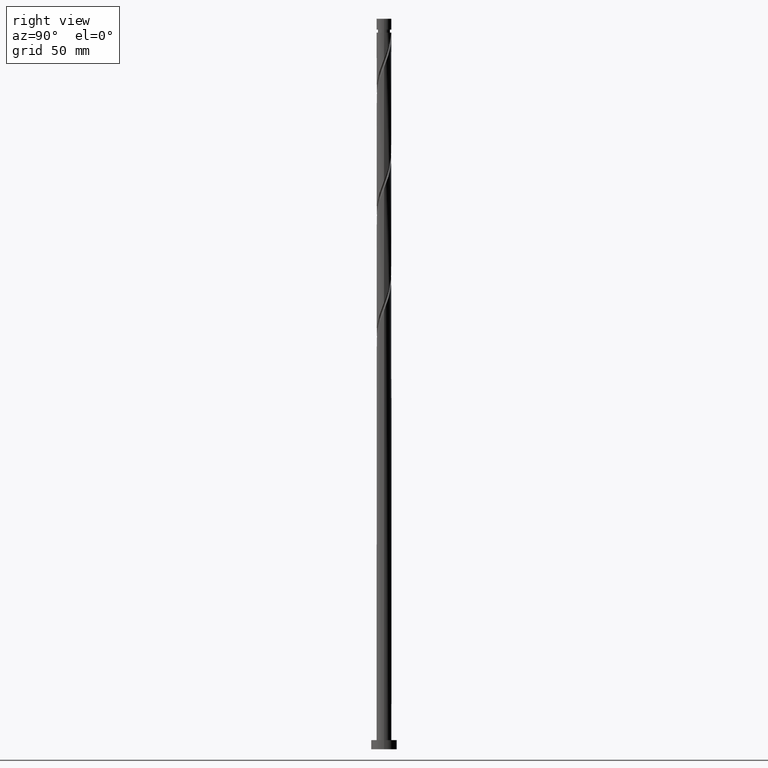
[diagram: clean part render]
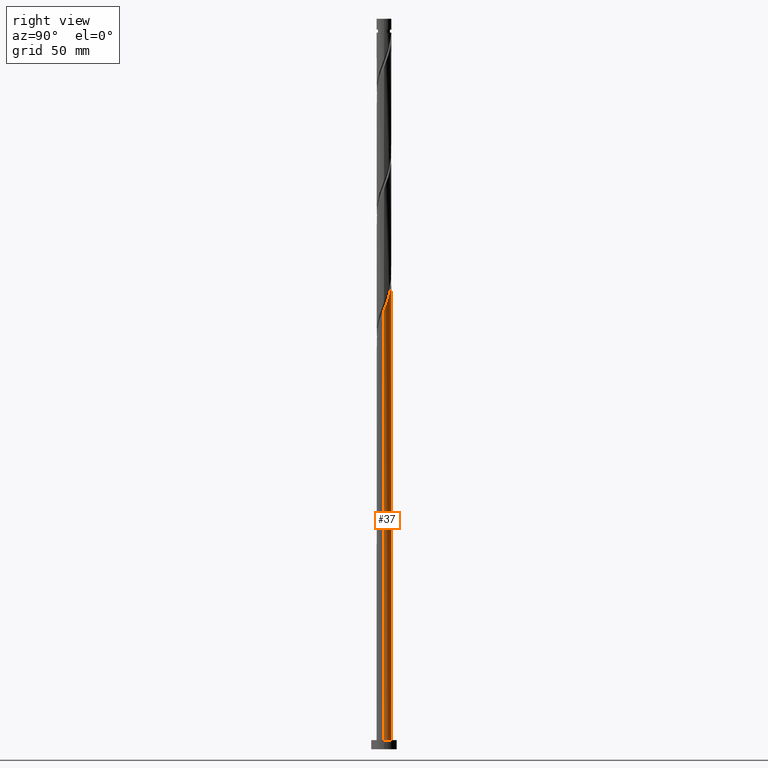
[diagram: same view with one face highlighted and labeled with its STEP entity id]
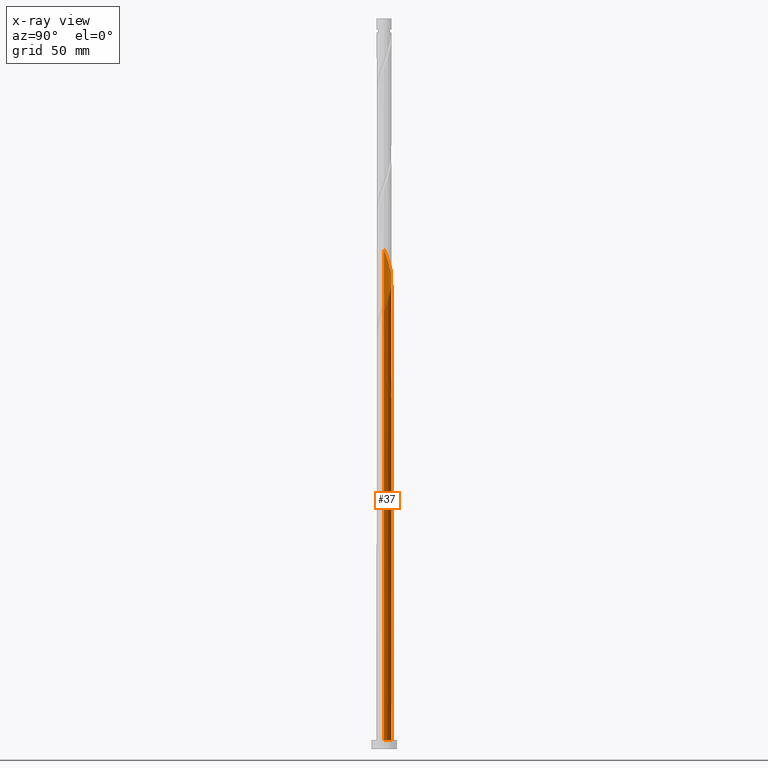
[diagram: x-ray of the same camera — body ghosted, the highlighted face saturated]
A machine part, right view. The second image highlights one B-rep face of the part: STEP entity #37.
The next image is the same camera in x-ray: the body ghosted, the highlighted face saturated — about 0% of this face is hidden behind the body in this view.
In plain terms, the highlighted cylindrical surface (edge-blend (fillet) strip) has radius 4.1 mm, axis along (-0, -0, -1).
Its self-contained STEP definition (entity closure, byte-faithful):
#21 = DIRECTION ( 'NONE',  ( -0.000000000000000000, -0.000000000000000000, -1.000000000000000000 ) ) ;
#23 = EDGE_LOOP ( 'NONE', ( #716, #1069, #973, #1214, #145, #49, #920, #1603 ) ) ;
#30 = VERTEX_POINT ( 'NONE', #1676 ) ;
#37 = ADVANCED_FACE ( 'NONE', ( #419 ), #1371, .T. ) ;
#45 = CARTESIAN_POINT ( 'NONE',  ( 3.071745223192165142, 2.715581205524180142, 247.9558985910525735 ) ) ;
#48 = VECTOR ( 'NONE', #1546, 1000.000000000000000 ) ;
#49 = ORIENTED_EDGE ( 'NONE', *, *, #845, .T. ) ;
#53 = CARTESIAN_POINT ( 'NONE',  ( 0.03732862272553962718, 4.099830066469275280, 256.8447874799414876 ) ) ;
#72 = CARTESIAN_POINT ( 'NONE',  ( -4.099999999999999645, 5.785036767797397422E-15, 211.1924529456851189 ) ) ;
#79 = CARTESIAN_POINT ( 'NONE',  ( -2.093712142991256631, 3.551347329654311658, 200.1781208132748304 ) ) ;
#82 = CARTESIAN_POINT ( 'NONE',  ( -3.531892677398866809, 2.082242568803237770, 267.9558985910525166 ) ) ;
#102 = CARTESIAN_POINT ( 'NONE',  ( -3.910705279217191688, 1.231415534700929904, 207.9558985910525166 ) ) ;
#111 = CARTESIAN_POINT ( 'NONE',  ( 0.3935808811299431609, 4.103753462814356823, 193.5114541466081448 ) ) ;
#122 = CARTESIAN_POINT ( 'NONE',  ( -0.03732862272553665040, 4.099830066469269063, 194.6225652577191738 ) ) ;
#129 = VERTEX_POINT ( 'NONE', #1362 ) ;
#145 = ORIENTED_EDGE ( 'NONE', *, *, #252, .F. ) ;
#175 = CARTESIAN_POINT ( 'NONE',  ( -3.887634921619595119, 1.302418794475822317, 203.5114541466081448 ) ) ;
#196 = CARTESIAN_POINT ( 'NONE',  ( -4.099999999999999645, 0.000000000000000000, 400.0000000000000000 ) ) ;
#204 = CARTESIAN_POINT ( 'NONE',  ( -1.633449724685978488, 3.760564053027596554, 261.2892319243858310 ) ) ;
#225 = EDGE_CURVE ( 'NONE', #1762, #129, #1108, .T. ) ;
#252 = EDGE_CURVE ( 'NONE', #1982, #1655, #868, .T. ) ;
#268 = CARTESIAN_POINT ( 'NONE',  ( -0.4682381265810167115, 4.095906670124179527, 195.7336763688303449 ) ) ;
#290 = CARTESIAN_POINT ( 'NONE',  ( -4.081272671962249632, 0.3914248038820667963, 210.1781208132746883 ) ) ;
#298 = VECTOR ( 'NONE', #836, 1000.000000000000000 ) ;
#304 = CARTESIAN_POINT ( 'NONE',  ( -4.099999999999999645, 0.000000000000000000, 400.0000000000000000 ) ) ;
#311 = CIRCLE ( 'NONE', #1650, 4.099999999999999645 ) ;
#320 = EDGE_CURVE ( 'NONE', #1655, #1397, #353, .T. ) ;
#334 = CARTESIAN_POINT ( 'NONE',  ( 4.099999999999999645, 5.021051876504146399E-16, 400.0000000000000000 ) ) ;
#341 = EDGE_CURVE ( 'NONE', #1762, #30, #1497, .T. ) ;
#344 = CARTESIAN_POINT ( 'NONE',  ( -4.073468864823458269, 0.4656730691310436154, 205.7336763688303165 ) ) ;
#353 = LINE ( 'NONE', #196, #298 ) ;
#360 = CARTESIAN_POINT ( 'NONE',  ( -3.887634921619595119, 1.302418794475822317, 270.1781208132748020 ) ) ;
#375 = CARTESIAN_POINT ( 'NONE',  ( 0.4682381265810190429, 4.095906670124184856, 255.7336763688303165 ) ) ;
#419 = FACE_OUTER_BOUND ( 'NONE', #23, .T. ) ;
#429 = CARTESIAN_POINT ( 'NONE',  ( 0.000000000000000000, 0.000000000000000000, 400.0000000000000000 ) ) ;
#493 = CARTESIAN_POINT ( 'NONE',  ( -4.024524653008618280, 0.8938118990468569836, 204.6225652577191738 ) ) ;
#506 = VERTEX_POINT ( 'NONE', #518 ) ;
#512 = CARTESIAN_POINT ( 'NONE',  ( -3.313040164567164325, 2.453459447701689111, 266.8447874799414308 ) ) ;
#518 = CARTESIAN_POINT ( 'NONE',  ( 0.8158896984274321973, 4.017999999999998906, 192.4003430354969737 ) ) ;
#521 = CARTESIAN_POINT ( 'NONE',  ( 1.309592881304574297, 3.909049101608763621, 253.5114541466080880 ) ) ;
#539 = CARTESIAN_POINT ( 'NONE',  ( -2.440019140137475784, 3.294890983896547887, 201.2892319243858310 ) ) ;
#580 =( BOUNDED_CURVE ( )  B_SPLINE_CURVE ( 2, ( #912, #1671, #290, #1503, #102, #1813, #1513, #1190, #1336, #1991, #539, #79, #717, #696, #1954, #268, #122, #111, #1803 ),
 .UNSPECIFIED., .F., .T. ) 
 B_SPLINE_CURVE_WITH_KNOTS ( ( 3, 2, 2, 2, 2, 2, 2, 2, 2, 3 ),
 ( 0.9295286012773115170, 0.9333333333333333481, 0.9416666666666666519, 0.9499999999999999556, 0.9583333333333333703, 0.9666666666666666741, 0.9749999999999999778, 0.9833333333333332815, 0.9916666666666666963, 1.000000000000000000 ),
 .UNSPECIFIED. ) 
 CURVE ( )  GEOMETRIC_REPRESENTATION_ITEM ( )  RATIONAL_B_SPLINE_CURVE ( ( 0.9066196499552329202, 0.9068171577856456445, 0.9090909090909445878, 0.9041108139711927505, 0.9090909090909445878, 0.9041108139711927505, 0.9090909090909445878, 0.9041108139711927505, 0.9090909090909445878, 0.9041108139711927505, 0.9090909090909445878, 0.9041108139711927505, 0.9090909090909445878, 0.9041108139711927505, 0.9090909090909445878, 0.9041108139711927505, 0.9090909090909445878, 0.9041108139711927505, 0.9090909090909445878 ) ) 
 REPRESENTATION_ITEM ( '' )  );
#616 = EDGE_CURVE ( 'NONE', #129, #1397, #957, .T. ) ;
#636 = CARTESIAN_POINT ( 'NONE',  ( -3.313040164567164325, 2.453459447701689111, 200.1781208132747736 ) ) ;
#645 = VECTOR ( 'NONE', #21, 1000.000000000000000 ) ;
#661 = CARTESIAN_POINT ( 'NONE',  ( 2.093712142991263292, 3.551347329654313878, 251.2892319243859163 ) ) ;
#677 = CARTESIAN_POINT ( 'NONE',  ( 4.040132267286214329, 0.8203838469793623966, 242.4003430354969737 ) ) ;
#696 = CARTESIAN_POINT ( 'NONE',  ( -1.309592881304570078, 3.909049101608759180, 197.9558985910525450 ) ) ;
#699 = CARTESIAN_POINT ( 'NONE',  ( -4.024524653008618280, 0.8938118990468569836, 271.2892319243858879 ) ) ;
#716 = ORIENTED_EDGE ( 'NONE', *, *, #341, .F. ) ;
#717 = CARTESIAN_POINT ( 'NONE',  ( -1.701652512147913354, 3.730198215631534087, 199.0670097021636593 ) ) ;
#747 = DIRECTION ( 'NONE',  ( -1.000000000000000000, 0.000000000000000000, 0.000000000000000000 ) ) ;
#784 = CARTESIAN_POINT ( 'NONE',  ( -2.379620159814338276, 3.338773411749474285, 196.8447874799414024 ) ) ;
#794 = EDGE_CURVE ( 'NONE', #1891, #506, #580, .T. ) ;
#836 = DIRECTION ( 'NONE',  ( -0.000000000000000000, -0.000000000000000000, -1.000000000000000000 ) ) ;
#845 = EDGE_CURVE ( 'NONE', #1982, #506, #311, .T. ) ;
#868 =( BOUNDED_CURVE ( )  B_SPLINE_CURVE ( 2, ( #945, #1573, #1750, #1744, #784, #1551, #1422, #636, #1264, #1100, #175, #493, #344, #1119, #1592 ),
 .UNSPECIFIED., .F., .T. ) 
 B_SPLINE_CURVE_WITH_KNOTS ( ( 3, 2, 2, 2, 2, 2, 2, 3 ),
 ( 0.000000000000000000, 0.008333333333333303727, 0.01666666666666671848, 0.02500000000000002220, 0.03333333333333332593, 0.04166666666666662966, 0.05000000000000004441, 0.05452860127731149614 ),
 .UNSPECIFIED. ) 
 CURVE ( )  GEOMETRIC_REPRESENTATION_ITEM ( )  RATIONAL_B_SPLINE_CURVE ( ( 0.9090909090909504719, 0.9041108139711987457, 0.9090909090909504719, 0.9041108139711987457, 0.9090909090909504719, 0.9041108139711987457, 0.9090909090909504719, 0.9041108139711987457, 0.9090909090909504719, 0.9041108139711987457, 0.9090909090909504719, 0.9041108139711987457, 0.9090909090909504719, 0.9063845652764976890, 0.9066196499552388044 ) ) 
 REPRESENTATION_ITEM ( '' )  );
#912 = CARTESIAN_POINT ( 'NONE',  ( -4.099999999999999645, 5.785036767797397422E-15, 211.1924529456851189 ) ) ;
#920 = ORIENTED_EDGE ( 'NONE', *, *, #794, .F. ) ;
#945 = CARTESIAN_POINT ( 'NONE',  ( -0.8158896984274307540, 4.018000000000005123, 192.4003430354969737 ) ) ;
#957 = CIRCLE ( 'NONE', #1745, 4.099999999999999645 ) ;
#969 = CARTESIAN_POINT ( 'NONE',  ( 2.786326137283700266, 3.038434638138789001, 249.0670097021635740 ) ) ;
#973 = ORIENTED_EDGE ( 'NONE', *, *, #616, .T. ) ;
#979 = CARTESIAN_POINT ( 'NONE',  ( 3.569221300124404639, 2.017587497666035734, 245.7336763688302881 ) ) ;
#987 = DIRECTION ( 'NONE',  ( 1.000000000000000000, 0.000000000000000000, 0.000000000000000000 ) ) ;
#990 = CARTESIAN_POINT ( 'NONE',  ( 4.081272671962255849, 0.3914248038820629660, 241.2892319243858879 ) ) ;
#994 = CARTESIAN_POINT ( 'NONE',  ( 0.000000000000000000, 0.000000000000000000, 5.000000000000000000 ) ) ;
#1007 = CARTESIAN_POINT ( 'NONE',  ( 0.8889155039427987237, 4.002477885866474239, 254.6225652577192022 ) ) ;
#1054 = DIRECTION ( 'NONE',  ( -0.000000000000000000, -0.000000000000000000, -1.000000000000000000 ) ) ;
#1069 = ORIENTED_EDGE ( 'NONE', *, *, #225, .T. ) ;
#1100 = CARTESIAN_POINT ( 'NONE',  ( -3.750745190230568848, 1.711025689904787317, 202.4003430354969737 ) ) ;
#1108 = LINE ( 'NONE', #334, #645 ) ;
#1119 = CARTESIAN_POINT ( 'NONE',  ( -4.100000000000004086, 0.2335923235303730972, 206.3359751492575924 ) ) ;
#1129 = CARTESIAN_POINT ( 'NONE',  ( -3.750745190230568848, 1.711025689904787317, 269.0670097021635456 ) ) ;
#1139 = CARTESIAN_POINT ( 'NONE',  ( 4.100000000000004974, 0.1961603970756759796, 240.7834483175395519 ) ) ;
#1148 = CARTESIAN_POINT ( 'NONE',  ( -1.238198515724920235, 3.932246537185646318, 260.1781208132747452 ) ) ;
#1149 = CARTESIAN_POINT ( 'NONE',  ( 4.100000000000004974, 2.481436959830391851E-15, 240.2748997919754856 ) ) ;
#1162 = AXIS2_PLACEMENT_3D ( 'NONE', #429, #1054, #747 ) ;
#1190 = CARTESIAN_POINT ( 'NONE',  ( -3.357164309100620248, 2.392727772909573503, 204.6225652577192022 ) ) ;
#1214 = ORIENTED_EDGE ( 'NONE', *, *, #320, .F. ) ;
#1264 = CARTESIAN_POINT ( 'NONE',  ( -3.531892677398866809, 2.082242568803237770, 201.2892319243858879 ) ) ;
#1271 = CARTESIAN_POINT ( 'NONE',  ( -4.100000000000004974, -3.946381671055562687E-15, 206.9415664586421713 ) ) ;
#1276 = DIRECTION ( 'NONE',  ( 0.000000000000000000, 0.000000000000000000, 1.000000000000000000 ) ) ;
#1290 = CARTESIAN_POINT ( 'NONE',  ( -2.730539385981640699, 3.088665254629401336, 264.6225652577192022 ) ) ;
#1297 = CARTESIAN_POINT ( 'NONE',  ( -4.100000000000004974, 0.2335923235303721257, 273.0026418159242780 ) ) ;
#1305 = CARTESIAN_POINT ( 'NONE',  ( 3.781278291148183257, 1.642447222422494635, 244.6225652577192022 ) ) ;
#1315 = CARTESIAN_POINT ( 'NONE',  ( -2.028700933647036297, 3.588881568869546346, 262.4003430354969737 ) ) ;
#1326 = CARTESIAN_POINT ( 'NONE',  ( 4.100000000000004974, 2.481436959830391851E-15, 240.2748997919754856 ) ) ;
#1336 = CARTESIAN_POINT ( 'NONE',  ( -3.071745223192157592, 2.715581205524179698, 203.5114541466080880 ) ) ;
#1362 = CARTESIAN_POINT ( 'NONE',  ( 4.099999999999999645, 5.021051876504146399E-16, 5.000000000000000000 ) ) ;
#1371 = CYLINDRICAL_SURFACE ( 'NONE', #1162, 4.099999999999999645 ) ;
#1380 = CARTESIAN_POINT ( 'NONE',  ( -4.099999999999999645, 0.000000000000000000, 5.000000000000000000 ) ) ;
#1397 = VERTEX_POINT ( 'NONE', #1380 ) ;
#1398 = CARTESIAN_POINT ( 'NONE',  ( 0.000000000000000000, 0.000000000000000000, 192.4003430354970305 ) ) ;
#1401 = EDGE_CURVE ( 'NONE', #30, #1891, #1847, .T. ) ;
#1422 = CARTESIAN_POINT ( 'NONE',  ( -3.021789775274403400, 2.771062351165545223, 199.0670097021636877 ) ) ;
#1451 = CARTESIAN_POINT ( 'NONE',  ( -4.073468864823458269, 0.4656730691310436154, 272.4003430354969737 ) ) ;
#1481 = CARTESIAN_POINT ( 'NONE',  ( -3.021789775274403400, 2.771062351165545223, 265.7336763688303449 ) ) ;
#1497 =( BOUNDED_CURVE ( )  B_SPLINE_CURVE ( 2, ( #1326, #1139, #990, #677, #1778, #1305, #979, #1640, #45, #969, #1768, #661, #1608, #521, #1007, #375, #53, #1909, #1759, #1148, #204, #1315, #1787, #1290, #1481, #512, #82, #1129, #360, #699, #1451, #1297, #1619 ),
 .UNSPECIFIED., .F., .T. ) 
 B_SPLINE_CURVE_WITH_KNOTS ( ( 3, 2, 2, 2, 2, 2, 2, 2, 2, 2, 2, 2, 2, 2, 2, 2, 3 ),
 ( 0.1795286012773115725, 0.1833333333333333481, 0.1916666666666666519, 0.1999999999999999556, 0.2083333333333333703, 0.2166666666666666741, 0.2249999999999999778, 0.2333333333333332815, 0.2416666666666666963, 0.2500000000000000000, 0.2583333333333333037, 0.2666666666666667185, 0.2750000000000000222, 0.2833333333333333259, 0.2916666666666666297, 0.3000000000000000444, 0.3045286012773115170 ),
 .UNSPECIFIED. ) 
 CURVE ( )  GEOMETRIC_REPRESENTATION_ITEM ( )  RATIONAL_B_SPLINE_CURVE ( ( 0.9066196499552388044, 0.9068171577856516397, 0.9090909090909504719, 0.9041108139711987457, 0.9090909090909504719, 0.9041108139711987457, 0.9090909090909504719, 0.9041108139711987457, 0.9090909090909504719, 0.9041108139711987457, 0.9090909090909504719, 0.9041108139711987457, 0.9090909090909504719, 0.9041108139711987457, 0.9090909090909504719, 0.9041108139711987457, 0.9090909090909504719, 0.9041108139711987457, 0.9090909090909504719, 0.9041108139711987457, 0.9090909090909504719, 0.9041108139711987457, 0.9090909090909504719, 0.9041108139711987457, 0.9090909090909504719, 0.9041108139711987457, 0.9090909090909504719, 0.9041108139711987457, 0.9090909090909504719, 0.9041108139711987457, 0.9090909090909504719, 0.9063845652764975780, 0.9066196499552388044 ) ) 
 REPRESENTATION_ITEM ( '' )  );
#1503 = CARTESIAN_POINT ( 'NONE',  ( -4.040132267286208112, 0.8203838469793625077, 209.0670097021636877 ) ) ;
#1513 = CARTESIAN_POINT ( 'NONE',  ( -3.569221300124397978, 2.017587497666034402, 205.7336763688303165 ) ) ;
#1546 = DIRECTION ( 'NONE',  ( -0.000000000000000000, -0.000000000000000000, -1.000000000000000000 ) ) ;
#1551 = CARTESIAN_POINT ( 'NONE',  ( -2.730539385981640699, 3.088665254629401336, 197.9558985910525166 ) ) ;
#1573 = CARTESIAN_POINT ( 'NONE',  ( -1.238198515724920235, 3.932246537185646318, 193.5114541466080880 ) ) ;
#1592 = CARTESIAN_POINT ( 'NONE',  ( -4.100000000000004974, -3.946381671055562687E-15, 206.9415664586421713 ) ) ;
#1593 = CARTESIAN_POINT ( 'NONE',  ( -0.8158896984274307540, 4.018000000000005123, 192.4003430354969737 ) ) ;
#1603 = ORIENTED_EDGE ( 'NONE', *, *, #1401, .F. ) ;
#1608 = CARTESIAN_POINT ( 'NONE',  ( 1.701652512147917795, 3.730198215631539860, 252.4003430354970305 ) ) ;
#1619 = CARTESIAN_POINT ( 'NONE',  ( -4.100000000000004974, -3.946381671055562687E-15, 273.6082331253088569 ) ) ;
#1640 = CARTESIAN_POINT ( 'NONE',  ( 3.357164309100626909, 2.392727772909573947, 246.8447874799414308 ) ) ;
#1650 = AXIS2_PLACEMENT_3D ( 'NONE', #1398, #1867, #1875 ) ;
#1655 = VERTEX_POINT ( 'NONE', #1271 ) ;
#1671 = CARTESIAN_POINT ( 'NONE',  ( -4.099999999999999645, 0.1961603970756767568, 210.6839044201211095 ) ) ;
#1676 = CARTESIAN_POINT ( 'NONE',  ( -4.100000000000004974, -3.946381671055562687E-15, 273.6082331253088569 ) ) ;
#1744 = CARTESIAN_POINT ( 'NONE',  ( -2.028700933647036297, 3.588881568869546346, 195.7336763688303733 ) ) ;
#1745 = AXIS2_PLACEMENT_3D ( 'NONE', #994, #1276, #987 ) ;
#1750 = CARTESIAN_POINT ( 'NONE',  ( -1.633449724685978488, 3.760564053027596554, 194.6225652577192022 ) ) ;
#1759 = CARTESIAN_POINT ( 'NONE',  ( -0.8158896984274307540, 4.018000000000005123, 259.0670097021637162 ) ) ;
#1762 = VERTEX_POINT ( 'NONE', #1149 ) ;
#1768 = CARTESIAN_POINT ( 'NONE',  ( 2.440019140137481557, 3.294890983896551884, 250.1781208132748020 ) ) ;
#1778 = CARTESIAN_POINT ( 'NONE',  ( 3.910705279217199237, 1.231415534700928571, 243.5114541466081164 ) ) ;
#1787 = CARTESIAN_POINT ( 'NONE',  ( -2.379620159814338276, 3.338773411749474285, 263.5114541466081732 ) ) ;
#1803 = CARTESIAN_POINT ( 'NONE',  ( 0.8158896984274321973, 4.017999999999998906, 192.4003430354969737 ) ) ;
#1813 = CARTESIAN_POINT ( 'NONE',  ( -3.781278291148176596, 1.642447222422496189, 206.8447874799414024 ) ) ;
#1847 = LINE ( 'NONE', #304, #48 ) ;
#1867 = DIRECTION ( 'NONE',  ( 0.000000000000000000, -1.692413147294447824E-14, -1.000000000000000000 ) ) ;
#1875 = DIRECTION ( 'NONE',  ( 0.000000000000000000, 1.000000000000000000, -2.030895776753335243E-14 ) ) ;
#1891 = VERTEX_POINT ( 'NONE', #72 ) ;
#1909 = CARTESIAN_POINT ( 'NONE',  ( -0.3935808811299397192, 4.103753462814363040, 257.9558985910525166 ) ) ;
#1954 = CARTESIAN_POINT ( 'NONE',  ( -0.8889155039427930616, 4.002477885866468910, 196.8447874799414024 ) ) ;
#1982 = VERTEX_POINT ( 'NONE', #1593 ) ;
#1991 = CARTESIAN_POINT ( 'NONE',  ( -2.786326137283694937, 3.038434638138785449, 202.4003430354969453 ) ) ;